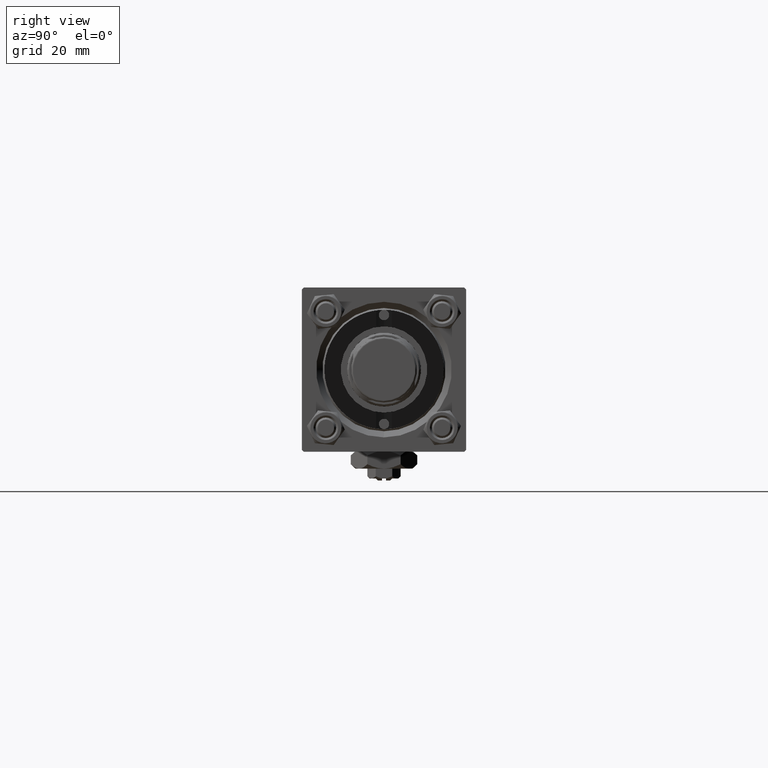
[diagram: clean part render]
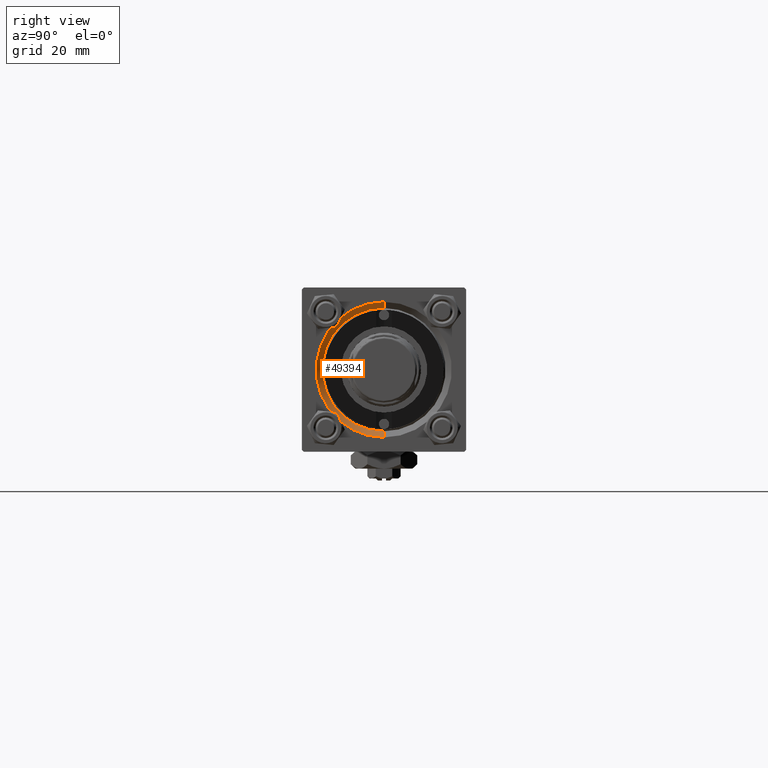
[diagram: same view with one face highlighted and labeled with its STEP entity id]
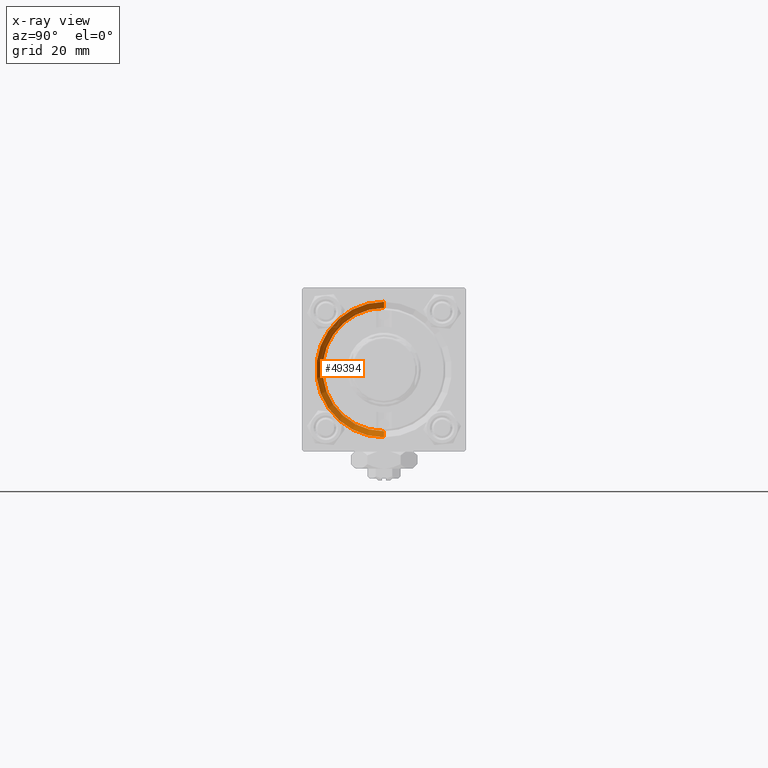
[diagram: x-ray of the same camera — body ghosted, the highlighted face saturated]
A machine part, right view. The second image highlights one B-rep face of the part: STEP entity #49394.
The next image is the same camera in x-ray: the body ghosted, the highlighted face saturated — about 0% of this face is hidden behind the body in this view.
In plain terms, the highlighted conical surface has half-angle 45 deg.
Its self-contained STEP definition (entity closure, byte-faithful):
#1213 = ORIENTED_EDGE ( 'NONE', *, *, #21253, .F. ) ;
#2245 = VERTEX_POINT ( 'NONE', #30062 ) ;
#3894 = DIRECTION ( 'NONE',  ( 0.000000000000000000, 0.000000000000000000, 1.000000000000000000 ) ) ;
#7321 = CARTESIAN_POINT ( 'NONE',  ( 117.5000000000000000, 0.000000000000000000, 0.000000000000000000 ) ) ;
#8094 = ORIENTED_EDGE ( 'NONE', *, *, #51485, .F. ) ;
#8789 = FACE_OUTER_BOUND ( 'NONE', #23973, .T. ) ;
#10436 = CIRCLE ( 'NONE', #28061, 15.00000000000000000 ) ;
#12807 = CARTESIAN_POINT ( 'NONE',  ( 117.5000000000000000, 0.000000000000000000, -15.00000000000000000 ) ) ;
#12965 = CARTESIAN_POINT ( 'NONE',  ( 117.5000000000000000, 0.000000000000000000, 0.000000000000000000 ) ) ;
#17342 = VERTEX_POINT ( 'NONE', #20778 ) ;
#17432 = DIRECTION ( 'NONE',  ( 1.000000000000000000, 0.000000000000000000, 0.000000000000000000 ) ) ;
#17636 = DIRECTION ( 'NONE',  ( 0.7071067811865474617, 8.659560562354932858E-17, 0.7071067811865474617 ) ) ;
#17711 = VERTEX_POINT ( 'NONE', #12807 ) ;
#18897 = ORIENTED_EDGE ( 'NONE', *, *, #26976, .T. ) ;
#19138 = VECTOR ( 'NONE', #17636, 1000.000000000000114 ) ;
#20617 = DIRECTION ( 'NONE',  ( 0.000000000000000000, 0.000000000000000000, -1.000000000000000000 ) ) ;
#20778 = CARTESIAN_POINT ( 'NONE',  ( 117.5000000000000000, 1.836970198721029589E-15, 15.00000000000000000 ) ) ;
#21253 = EDGE_CURVE ( 'NONE', #17711, #45851, #41486, .T. ) ;
#22117 = CARTESIAN_POINT ( 'NONE',  ( 117.5000000000000000, 1.836970198721029589E-15, 15.00000000000000000 ) ) ;
#23973 = EDGE_LOOP ( 'NONE', ( #8094, #18897, #25960, #1213 ) ) ;
#24831 = DIRECTION ( 'NONE',  ( 1.000000000000000000, 0.000000000000000000, 0.000000000000000000 ) ) ;
#25639 = CARTESIAN_POINT ( 'NONE',  ( 119.0000000000000142, 0.000000000000000000, 0.000000000000000000 ) ) ;
#25960 = ORIENTED_EDGE ( 'NONE', *, *, #38470, .F. ) ;
#26976 = EDGE_CURVE ( 'NONE', #17342, #2245, #34211, .T. ) ;
#28061 = AXIS2_PLACEMENT_3D ( 'NONE', #7321, #17432, #3894 ) ;
#29464 = CIRCLE ( 'NONE', #36190, 16.50000000000001421 ) ;
#30062 = CARTESIAN_POINT ( 'NONE',  ( 119.0000000000000142, 2.020667218593134678E-15, 16.50000000000001421 ) ) ;
#34211 = LINE ( 'NONE', #22117, #19138 ) ;
#34361 = DIRECTION ( 'NONE',  ( 0.7071067811865474617, 0.000000000000000000, -0.7071067811865474617 ) ) ;
#35865 = VECTOR ( 'NONE', #34361, 1000.000000000000114 ) ;
#36190 = AXIS2_PLACEMENT_3D ( 'NONE', #25639, #44607, #49342 ) ;
#38470 = EDGE_CURVE ( 'NONE', #45851, #2245, #29464, .T. ) ;
#41486 = LINE ( 'NONE', #45961, #35865 ) ;
#41568 = CARTESIAN_POINT ( 'NONE',  ( 119.0000000000000142, 0.000000000000000000, -16.50000000000001421 ) ) ;
#44607 = DIRECTION ( 'NONE',  ( -1.000000000000000000, -0.000000000000000000, -0.000000000000000000 ) ) ;
#45851 = VERTEX_POINT ( 'NONE', #41568 ) ;
#45961 = CARTESIAN_POINT ( 'NONE',  ( 117.5000000000000000, 0.000000000000000000, -15.00000000000000000 ) ) ;
#46498 = CONICAL_SURFACE ( 'NONE', #47335, 15.00000000000000000, 0.7853981633974482790 ) ;
#47335 = AXIS2_PLACEMENT_3D ( 'NONE', #12965, #24831, #20617 ) ;
#49342 = DIRECTION ( 'NONE',  ( 0.000000000000000000, 0.000000000000000000, 1.000000000000000000 ) ) ;
#49394 = ADVANCED_FACE ( 'NONE', ( #8789 ), #46498, .F. ) ;
#51485 = EDGE_CURVE ( 'NONE', #17342, #17711, #10436, .T. ) ;